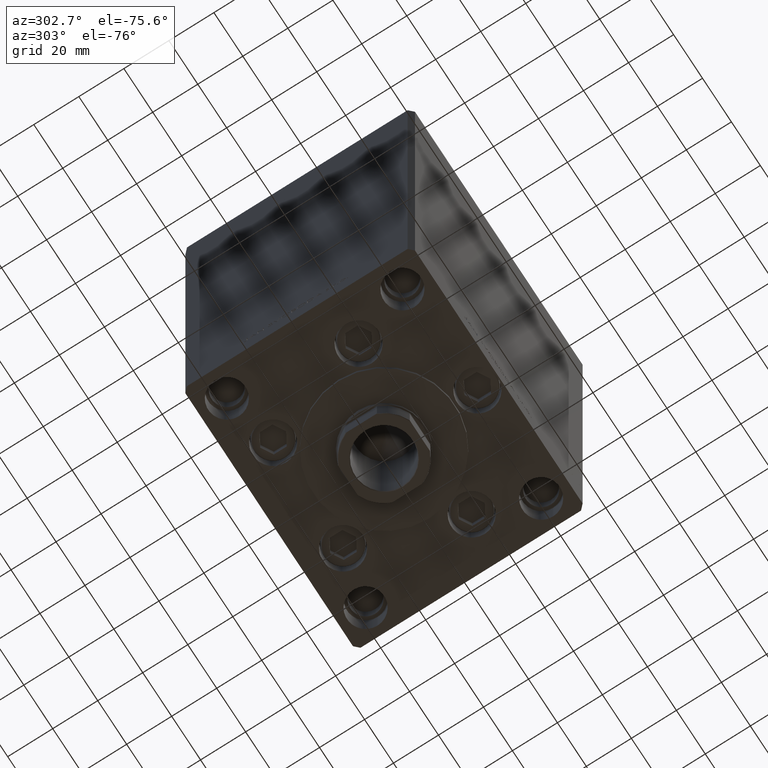
[diagram: clean part render]
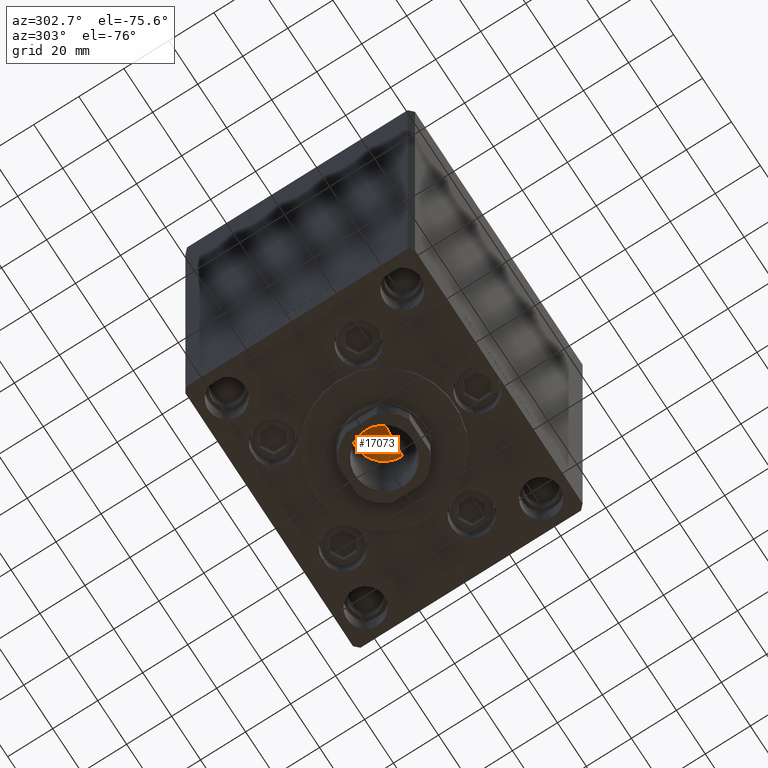
[diagram: same view with one face highlighted and labeled with its STEP entity id]
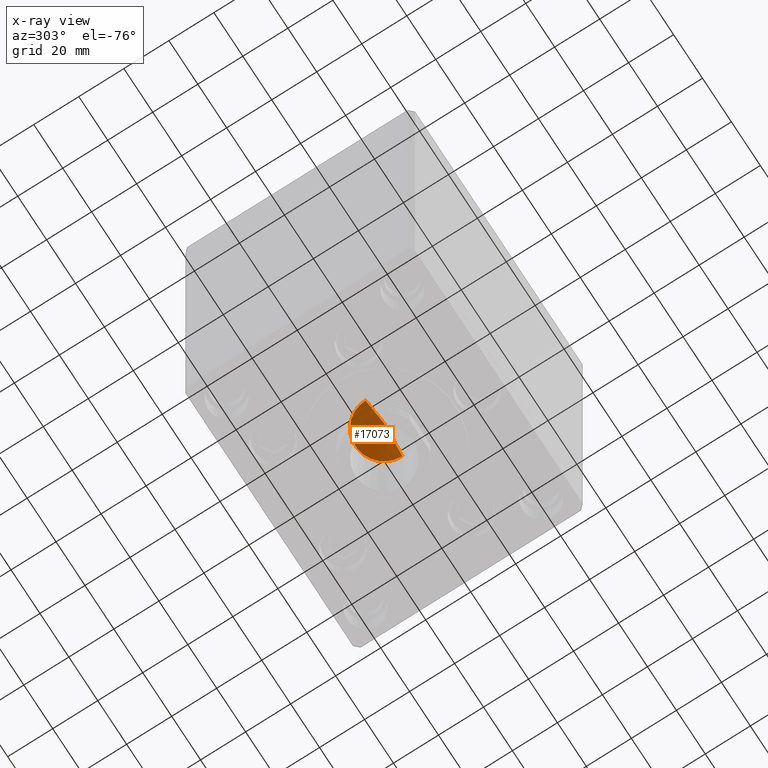
[diagram: x-ray of the same camera — body ghosted, the highlighted face saturated]
A machine part, auxiliary view. The second image highlights one B-rep face of the part: STEP entity #17073.
The next image is the same camera in x-ray: the body ghosted, the highlighted face saturated — about 38% of this face is hidden behind the body in this view.
In plain terms, the highlighted conical surface has half-angle 59 deg.
Its self-contained STEP definition (entity closure, byte-faithful):
#963 = VECTOR ( 'NONE', #38900, 1000.000000000000114 ) ;
#2185 = ORIENTED_EDGE ( 'NONE', *, *, #30104, .T. ) ;
#4488 = CIRCLE ( 'NONE', #40281, 12.74999999999999112 ) ;
#6524 = EDGE_CURVE ( 'NONE', #44693, #38367, #15274, .T. ) ;
#13252 = VERTEX_POINT ( 'NONE', #36466 ) ;
#14108 = DIRECTION ( 'NONE',  ( -0.000000000000000000, -0.000000000000000000, 1.000000000000000000 ) ) ;
#15257 = DIRECTION ( 'NONE',  ( -0.000000000000000000, -0.000000000000000000, 1.000000000000000000 ) ) ;
#15274 = LINE ( 'NONE', #37180, #48276 ) ;
#15733 = DIRECTION ( 'NONE',  ( 1.000000000000000000, 0.000000000000000000, 0.000000000000000000 ) ) ;
#16260 = LINE ( 'NONE', #46606, #963 ) ;
#17073 = ADVANCED_FACE ( 'NONE', ( #38140 ), #26273, .F. ) ;
#18318 = AXIS2_PLACEMENT_3D ( 'NONE', #41849, #15257, #15733 ) ;
#22495 = DIRECTION ( 'NONE',  ( 0.8571673007021125557, 0.000000000000000000, 0.5150380749100536004 ) ) ;
#26273 = CONICAL_SURFACE ( 'NONE', #18318, 12.74999999999999112, 1.029744258676655200 ) ;
#29750 = ORIENTED_EDGE ( 'NONE', *, *, #48515, .F. ) ;
#30104 = EDGE_CURVE ( 'NONE', #38367, #13252, #4488, .T. ) ;
#31516 = ORIENTED_EDGE ( 'NONE', *, *, #6524, .T. ) ;
#31539 = EDGE_LOOP ( 'NONE', ( #29750, #31516, #2185 ) ) ;
#36466 = CARTESIAN_POINT ( 'NONE',  ( -12.74999999999999112, 1.561424668912874125E-15, 144.2500000000000000 ) ) ;
#37180 = CARTESIAN_POINT ( 'NONE',  ( 12.74999999999999112, 0.000000000000000000, 144.2500000000000000 ) ) ;
#37385 = CARTESIAN_POINT ( 'NONE',  ( -1.307202896762960287E-14, 0.000000000000000000, 136.5890271073986071 ) ) ;
#38140 = FACE_OUTER_BOUND ( 'NONE', #31539, .T. ) ;
#38367 = VERTEX_POINT ( 'NONE', #40854 ) ;
#38900 = DIRECTION ( 'NONE',  ( -0.8571673007021125557, 1.049727191138618942E-16, 0.5150380749100536004 ) ) ;
#40230 = DIRECTION ( 'NONE',  ( 1.000000000000000000, 0.000000000000000000, 0.000000000000000000 ) ) ;
#40281 = AXIS2_PLACEMENT_3D ( 'NONE', #46937, #14108, #40230 ) ;
#40854 = CARTESIAN_POINT ( 'NONE',  ( 12.74999999999999112, 0.000000000000000000, 144.2500000000000000 ) ) ;
#41849 = CARTESIAN_POINT ( 'NONE',  ( 0.000000000000000000, 0.000000000000000000, 144.2500000000000000 ) ) ;
#44693 = VERTEX_POINT ( 'NONE', #37385 ) ;
#46606 = CARTESIAN_POINT ( 'NONE',  ( -12.74999999999999112, 1.561424668912874125E-15, 144.2500000000000000 ) ) ;
#46937 = CARTESIAN_POINT ( 'NONE',  ( 0.000000000000000000, 0.000000000000000000, 144.2500000000000000 ) ) ;
#48276 = VECTOR ( 'NONE', #22495, 1000.000000000000114 ) ;
#48515 = EDGE_CURVE ( 'NONE', #44693, #13252, #16260, .T. ) ;